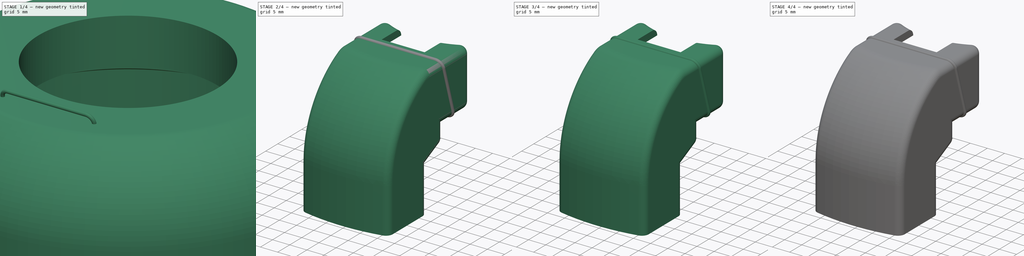
[diagram: build sequence overview — one tinted view per stage of 4, left to right]
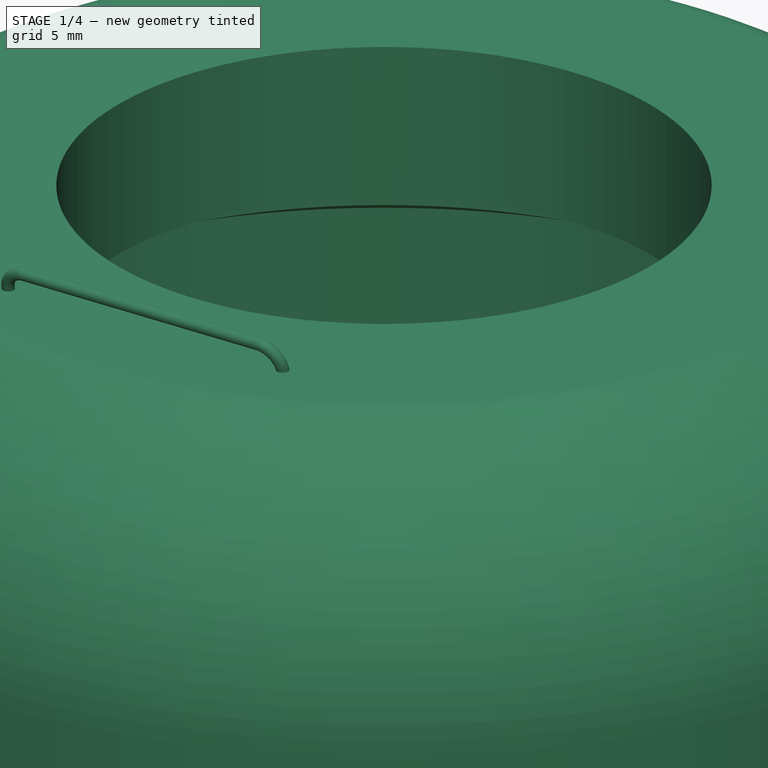
[diagram: stage 1 of 4 — iso view after this stage's code; geometry added in this stage tinted green]
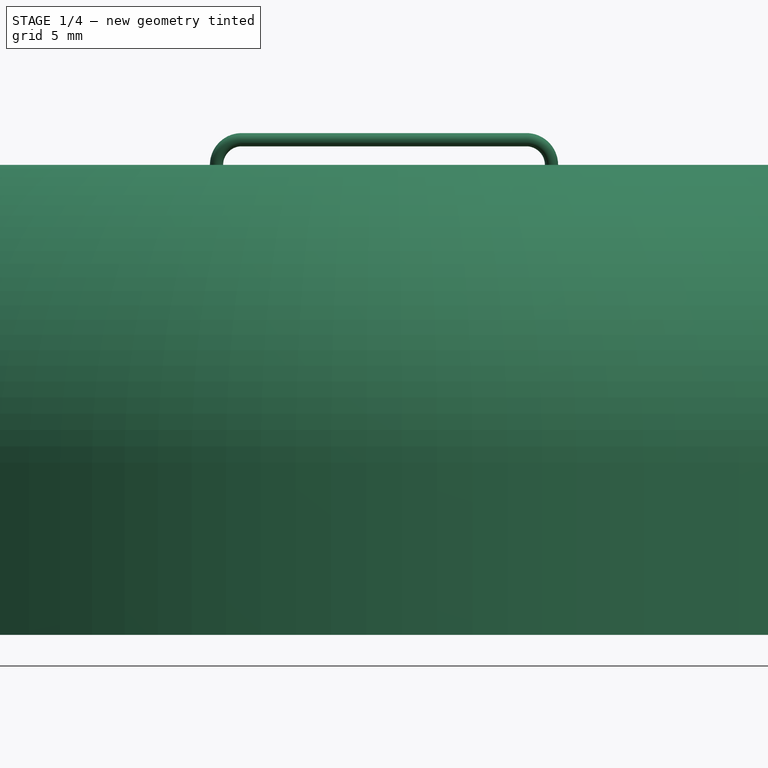
[diagram: stage 1 of 4 — front view after this stage's code; geometry added in this stage tinted green]
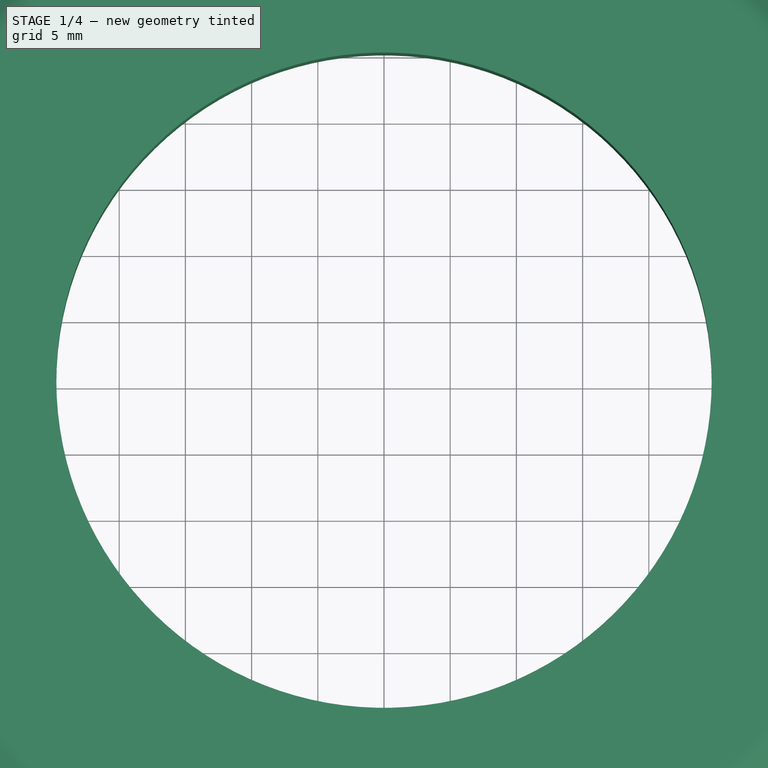
[diagram: stage 1 of 4 — top view after this stage's code; geometry added in this stage tinted green]
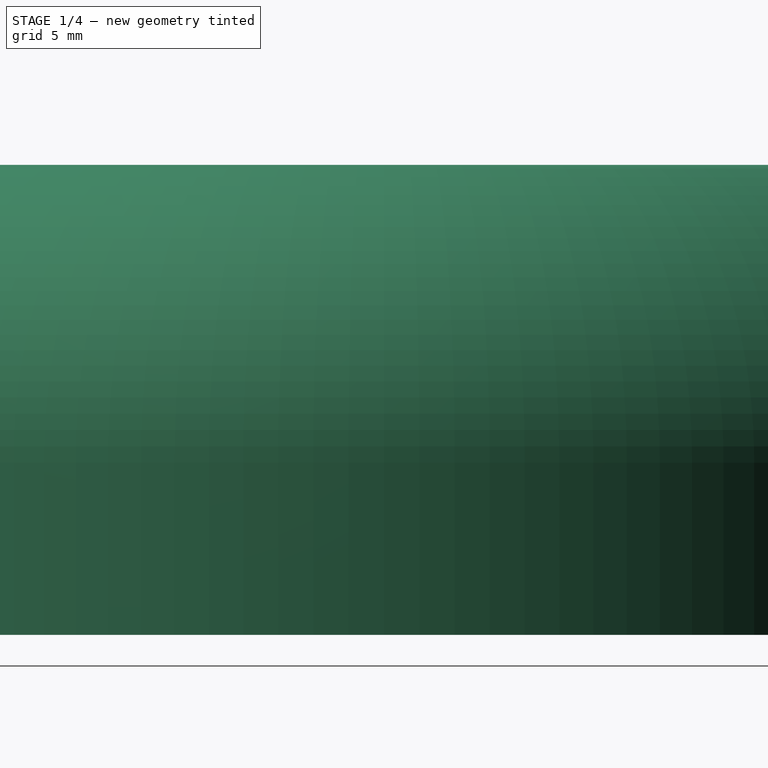
[diagram: stage 1 of 4 — right view after this stage's code; geometry added in this stage tinted green]
FCSTD DOCUMENT  (FreeCAD 1.0R39109 (Git))
Label: pado chimney 5
License: All rights reserved
objects: Sketcher::SketchObject×8, PartDesign::Body×5, PartDesign::FeatureBase×4, Part::FeaturePython×3, PartDesign::Pocket×2, PartDesign::Boolean×2, Part::Extrusion×1, Part::Face×1, App::DocumentObjectGroup×1, Part::Offset2D×1, Part::Sweep×1, App::Part×1, PartDesign::SubShapeBinder×1, PartDesign::Revolution×1, PartDesign::Thickness×1, App::VarSet×1
note: 53 computed .brp shape members not serialized (recipe doc carries the construction recipe); baked Part::Feature solids carry a one-line shape summary decoded from their .brp

FEATURE [Sketcher::SketchObject] Sketch003
  ArcFitTolerance = 1e-06
  AttachmentSupport = -> [XZ_Plane001]
  FullyConstrained = true
  MakeInternals = false
  MapMode = 5
  Placement = pos=(0,0,0) rot=(1,0,0;1.5708rad)
  expr: Constraints[28] = VarSet.Thickness
  sketch-geometry (13):
    g0: LineSegment StartX=-12.75 StartY=35.5 StartZ=0 EndX=-12.75 EndY=23 EndZ=0
    g1: LineSegment StartX=-10.75 StartY=21 StartZ=0 EndX=10.75 EndY=21 EndZ=0
    g2: LineSegment StartX=12.75 StartY=23 StartZ=0 EndX=12.75 EndY=35.5 EndZ=0
    g3: LineSegment StartX=10.75 StartY=37.5 StartZ=0 EndX=-10.75 EndY=37.5 EndZ=0
    g4: GeomPoint [constr] X=0 Y=29.25 Z=0
    g5: ArcOfCircle CenterX=10.75 CenterY=35.5 CenterZ=0 NormalX=0 NormalY=0 NormalZ=1 AngleXU=0 Radius=2 StartAngle=1.4e-15 EndAngle=1.5708
    g6: GeomPoint [constr] X=12.75 Y=37.5 Z=0
    g7: ArcOfCircle CenterX=10.75 CenterY=23 CenterZ=0 NormalX=0 NormalY=0 NormalZ=1 AngleXU=0 Radius=2 StartAngle=4.71239 EndAngle=6.28319
    g8: GeomPoint [constr] X=12.75 Y=21 Z=0
    g9: ArcOfCircle CenterX=-10.75 CenterY=23 CenterZ=0 NormalX=0 NormalY=0 NormalZ=1 AngleXU=0 Radius=2 StartAngle=3.14159 EndAngle=4.71239
    g10: GeomPoint [constr] X=-12.75 Y=21 Z=0
    g11: ArcOfCircle CenterX=-10.75 CenterY=35.5 CenterZ=0 NormalX=0 NormalY=0 NormalZ=1 AngleXU=0 Radius=2 StartAngle=1.5708 EndAngle=3.14159
    g12: GeomPoint [constr] X=-12.75 Y=37.5 Z=0
  constraints (29):
    c: Vertical(g0)
    c: Vertical(g2)
    c: Horizontal(g1)
    c: Horizontal(g3)
    c: Symmetric(g8,g12,g4)
    c: PointOnObject(g4,g-2)
    c: DistanceY(g-1,g10) = 21
    c: DistanceY(g10,g12) = 16.5
    c: Distance(g6,g12) = 25.5
    c: PointOnObject(g6,g3)
    c: PointOnObject(g6,g2)
    c: Tangent(g3,g5) = -1.5708
    c: Tangent(g2,g5) = -1.5708
    c: PointOnObject(g8,g2)
    c: PointOnObject(g8,g1)
    c: Tangent(g2,g7) = -1.5708
    c: Tangent(g1,g7) = -1.5708
    c: PointOnObject(g10,g1)
    c: PointOnObject(g10,g0)
    c: Tangent(g1,g9) = -1.5708
    c: Tangent(g0,g9) = -1.5708
    c: PointOnObject(g12,g3)
    c: PointOnObject(g12,g0)
    c: Tangent(g3,g11) = -1.5708
    c: Tangent(g0,g11) = -1.5708
    c: Equal(g5,g11)
    c: Equal(g11,g9)
    c: Equal(g9,g7)
    c: Radius(g5) = 2
FEATURE [Part::Extrusion] Extrude
  Base = -> Sketch003
  Dir = (0,-1,2e-16)
  DirMode = 2
  FaceMakerClass = Part::FaceMakerBullseye
  FaceMakerMode = 3
  LengthFwd = 50
  LengthRev = 0
  Solid = false
  Symmetric = false
FEATURE [Sketcher::SketchObject] Sketch004
  ArcFitTolerance = 1e-06
  AttachmentSupport = -> [Extrude]
  FullyConstrained = false
  MakeInternals = false
  MapMode = 5
  Placement = pos=(0,8.3e-15,37.5) rot=(1,0,0;3.14159rad)
  sketch-geometry (1):
    g0: LineSegment StartX=-17.692 StartY=32 StartZ=0 EndX=17.692 EndY=32 EndZ=0
  constraints (2):
    c: Symmetric(g0,g0,g-2)
    c: DistanceY(g-1,g0) = 32
FEATURE [Sketcher::SketchObject] Sketch005
  ArcFitTolerance = 1e-06
  AttachmentSupport = -> [Extrude]
  FullyConstrained = true
  MakeInternals = false
  MapMode = 5
  Placement = pos=(0,4.7e-15,21) rot=(0,0,1;0rad)
  sketch-geometry (1):
    g0: GeomPoint X=0 Y=-27 Z=0
  constraints (2):
    c: PointOnObject(g0,g-2)
    c: DistanceY(g0,g-1) = 27
FEATURE [Sketcher::SketchObject] Sketch006
  ArcFitTolerance = 1e-06
  AttachmentSupport = -> [Sketch005,Sketch004]
  FullyConstrained = false
  MakeInternals = false
  MapMode = 13
  Placement = pos=(0,-30.3333,32) rot=(0,0.595816,0.803121;3.14159rad)
  sketch-geometry (5):
    g0: LineSegment StartX=-41.0077 StartY=-30.9425 StartZ=0 EndX=41.0077 EndY=-30.9425 EndZ=0
    g1: LineSegment StartX=41.0077 StartY=-30.9425 StartZ=0 EndX=41.0077 EndY=17.9335 EndZ=0
    g2: LineSegment StartX=41.0077 StartY=17.9335 StartZ=0 EndX=-41.0077 EndY=17.9335 EndZ=0
    g3: LineSegment StartX=-41.0077 StartY=17.9335 StartZ=0 EndX=-41.0077 EndY=-30.9425 EndZ=0
    g4: GeomPoint [constr] X=0 Y=-6.50452 Z=0
  constraints (10):
    c: Coincident(g0,g1)
    c: Coincident(g1,g2)
    c: Coincident(g2,g3)
    c: Coincident(g3,g0)
    c: Horizontal(g0)
    c: Horizontal(g2)
    c: Vertical(g1)
    c: Vertical(g3)
    c: Symmetric(g2,g0,g4)
    c: PointOnObject(g4,g-2)
FEATURE [Part::Face] Face
  FaceMakerClass = Part::FaceMakerBullseye
  Sources = -> [Sketch006]
FEATURE [Part::FeaturePython] Slice  # WARN: FeaturePython — macro-defined, semantics opaque (R4)
  Base = -> Face
  Mode = 1
  Tolerance = 0
  Tools = -> [Extrude]
FEATURE [Part::FeaturePython] Slice_child0  label="Slice.0"  # WARN: FeaturePython — macro-defined, semantics opaque (R4)
  Base = -> Slice
  FilterType = 1
  Invert = false
  OverrideMaxVal = 0
  WindowFrom = 80
  WindowTo = 100
  items = 0
FEATURE [Part::FeaturePython] Slice_child1  label="Slice.1"  # WARN: FeaturePython — macro-defined, semantics opaque (R4)
  Base = -> Slice
  FilterType = 1
  Invert = false
  OverrideMaxVal = 0
  WindowFrom = 80
  WindowTo = 100
  items = 1
FEATURE [App::DocumentObjectGroup] GrExplode_Slice  label="Exploded Slice"
  Group = -> [Slice_child0,Slice_child1]
FEATURE [Part::Offset2D] Offset2D
  Fill = false
  Intersection = false
  Join = 0
  Mode = 1
  SelfIntersection = false
  Source = -> Slice_child1
  Value = -0.1
FEATURE [Sketcher::SketchObject] Sketch007
  ArcFitTolerance = 1e-06
  AttachmentSupport = -> [Offset2D]
  FullyConstrained = true
  MakeInternals = false
  MapMode = 7
  Placement = pos=(-10.75,-27.029,21.0957) rot=(0.57735,-0.57735,-0.57735;2.0944rad)
  expr: Constraints[1] = VarSet.GrooveDiameter
  sketch-geometry (1):
    g0: Circle CenterX=0 CenterY=0 CenterZ=0 NormalX=0 NormalY=0 NormalZ=1 AngleXU=0 Radius=0.5
  constraints (2):
    c: Coincident(g0,g-1)
    c: Diameter(g0) = 1
FEATURE [Part::Sweep] Sweep
  Frenet = true
  Sections = -> [Sketch007]
  Solid = true
  Spine = -> Offset2D [Edge3,Edge4,Edge5,Edge6,Edge7,Edge8,Edge1,Edge2]
  Transition = 1
FEATURE [App::Part] Part  label="Groove Cutter"
  Group = -> [Sketch003,Extrude,Sketch004,Sketch005,Sketch006,Face,Slice_child0,Slice_child1,Slice,GrExplode_Slice,Sweep,Offset2D,Sketch007]
  Origin = -> Origin001
FEATURE [Sketcher::SketchObject] Sketch008
  ArcFitTolerance = 1e-06
  AttachmentSupport = -> [XZ_Plane003]
  FullyConstrained = true
  MakeInternals = false
  MapMode = 5
  Placement = pos=(0,0,0) rot=(1,0,0;1.5708rad)
  expr: Constraints[56] = VarSet.Thickness
  sketch-geometry (20):
    g0: LineSegment [constr] StartX=0 StartY=0 StartZ=0 EndX=41.12 EndY=0 EndZ=0
    g1: LineSegment [constr] StartX=41.12 StartY=0 StartZ=0 EndX=41.12 EndY=20 EndZ=0
    g2: LineSegment [constr] StartX=41.12 StartY=20 StartZ=0 EndX=38.75 EndY=20 EndZ=0
    g3: LineSegment [constr] StartX=38.75 StartY=20 StartZ=0 EndX=38.75 EndY=50 EndZ=0
    g4: LineSegment [constr] StartX=38.75 StartY=50 StartZ=0 EndX=0 EndY=50 EndZ=0
    g5: LineSegment [constr] StartX=0 StartY=50 StartZ=0 EndX=0 EndY=0 EndZ=0
    g6: LineSegment StartX=39.62 StartY=-2 StartZ=0 EndX=39.62 EndY=13 EndZ=0
    g7: LineSegment StartX=39.62 StartY=13 StartZ=0 EndX=33.12 EndY=16.25 EndZ=0
    g8: LineSegment StartX=33.12 StartY=16.25 StartZ=0 EndX=33.12 EndY=21 EndZ=0
    g9: LineSegment StartX=33.12 StartY=21 StartZ=0 EndX=22.75 EndY=21 EndZ=0
    g10: LineSegment StartX=22.75 StartY=21 StartZ=0 EndX=22.75 EndY=37.5 EndZ=0
    g11: LineSegment [constr] StartX=22.75 StartY=37.5 StartZ=0 EndX=55.62 EndY=37.5 EndZ=0
    g12: LineSegment [constr] StartX=55.62 StartY=37.5 StartZ=0 EndX=55.62 EndY=-2 EndZ=0
    g13: LineSegment StartX=55.62 StartY=-2 StartZ=0 EndX=39.62 EndY=-2 EndZ=0
    g14: LineSegment StartX=55.62 StartY=-2 StartZ=0 EndX=55.62 EndY=13 EndZ=0
    g15: LineSegment StartX=22.75 StartY=37.5 StartZ=0 EndX=38.75 EndY=37.5 EndZ=0
    g16: LineSegment [constr] StartX=37.62 StartY=14 StartZ=0 EndX=39.62 EndY=14 EndZ=0
    g17: LineSegment [constr] StartX=39.62 StartY=14 StartZ=0 EndX=39.62 EndY=13 EndZ=0
    g18: ArcOfCircle CenterX=28.6677 CenterY=13 CenterZ=0 NormalX=0 NormalY=0 NormalZ=1 AngleXU=0 Radius=26.9523 StartAngle=5e-16 EndAngle=1.09361
    g19: ArcOfCircle CenterX=38.75 CenterY=32.5 CenterZ=0 NormalX=0 NormalY=0 NormalZ=1 AngleXU=0 Radius=5 StartAngle=1.09361 EndAngle=1.5708
  constraints (57):
    c: Coincident(g-1,g0)
    c: PointOnObject(g0,g-1)
    c: Coincident(g0,g1)
    c: Vertical(g1)
    c: Coincident(g1,g2)
    c: Coincident(g2,g3)
    c: Vertical(g3)
    c: Coincident(g3,g4)
    c: PointOnObject(g4,g-2)
    c: Horizontal(g4)
    c: Coincident(g4,g5)
    c: Coincident(g5,g0)
    c: Horizontal(g2)
    c: Distance(g0,g0) = 41.12
    c: DistanceY(g1,g1) = 20
    c: DistanceY(g3,g3) = 30
    c: Vertical(g6)
    c: Coincident(g7,g6)
    c: Coincident(g8,g7)
    c: Vertical(g8)
    c: Coincident(g9,g8)
    c: Horizontal(g9)
    c: Coincident(g10,g9)
    c: Vertical(g10)
    c: Coincident(g11,g10)
    c: Horizontal(g11)
    c: Coincident(g12,g11)
    c: Vertical(g12)
    c: Coincident(g13,g12)
    c: Coincident(g13,g6)
    c: Distance(g7,g1) = 8
    c: Distance(g9,g3) = 16
    c: Distance(g13,g13) = 16
    c: Coincident(g14,g12)
    c: PointOnObject(g14,g12)
    c: Coincident(g10,g15)
    c: PointOnObject(g15,g11)
    c: PointOnObject(g15,g3)
    c: Horizontal(g6,g14)
    c: DistanceY(g10,g10) = 16.5
    c: DistanceX(g4,g4) = 38.75
    c: DistanceY(g-1,g9) = 21
    c: Horizontal(g16)
    c: Coincident(g16,g17)
    c: Coincident(g17,g6)
    c: Vertical(g17)
    c: PointOnObject(g16,g7)
    c: Distance(g17,g17) = 1
    c: DistanceX(g16,g16) = 2
    c: Tangent(g18,g14) = -1.5708
    c: Tangent(g19,g18) = -1.5708
    c: Tangent(g19,g15) = 1.5708
    c: Radius(g19) = 5
    c: Distance(g6,g0) = 13
    c: Horizontal(g13)
    c: Distance(g6,g1) = 1.5
    c: DistanceY(g6,g-1) = 2
FEATURE [Sketcher::SketchObject] Sketch009
  ArcFitTolerance = 1e-06
  AttachmentSupport = -> [XY_Plane003]
  FullyConstrained = true
  MakeInternals = false
  MapMode = 5
  expr: Constraints[19] = 25.5 mm - 2 * VarSet.Thickness
  sketch-geometry (10):
    g0: LineSegment StartX=-100 StartY=-100 StartZ=0 EndX=-10.75 EndY=-100 EndZ=0
    g1: LineSegment StartX=100 StartY=-100 StartZ=0 EndX=100 EndY=100 EndZ=0
    g2: LineSegment StartX=100 StartY=100 StartZ=0 EndX=-100 EndY=100 EndZ=0
    g3: LineSegment StartX=-100 StartY=100 StartZ=0 EndX=-100 EndY=-100 EndZ=0
    g4: GeomPoint [constr] X=0 Y=0 Z=0
    g5: LineSegment StartX=10.75 StartY=0 StartZ=0 EndX=-10.75 EndY=0 EndZ=0
    g6: LineSegment StartX=-10.75 StartY=0 StartZ=0 EndX=-10.75 EndY=-100 EndZ=0
    g7: LineSegment StartX=10.75 StartY=-100 StartZ=0 EndX=10.75 EndY=0 EndZ=0
    g8: GeomPoint [constr] X=0 Y=-50 Z=0
    g9: LineSegment StartX=10.75 StartY=-100 StartZ=0 EndX=100 EndY=-100 EndZ=0
  constraints (25):
    c: Coincident(g9,g1)
    c: Coincident(g1,g2)
    c: Coincident(g2,g3)
    c: Coincident(g3,g0)
    c: Horizontal(g0)
    c: Horizontal(g2)
    c: Vertical(g1)
    c: Vertical(g3)
    c: Symmetric(g2,g0,g4)
    c: Coincident(g4,g-1)
    c: Equal(g2,g1)
    c: DistanceY(g3,g3) = 200
    c: Coincident(g5,g6)
    c: Coincident(g7,g5)
    c: Horizontal(g5)
    c: Vertical(g6)
    c: Vertical(g7)
    c: Symmetric(g6,g5,g8)
    c: PointOnObject(g8,g-2)
    c: DistanceX(g6,g7) = 21.5
    c: PointOnObject(g4,g5)
    c: Coincident(g0,g6)
    c: Coincident(g7,g9)
    c: Horizontal(g9)
    c: Horizontal(g0,g7)
FEATURE [PartDesign::SubShapeBinder] Binder
  BindCopyOnChange = 0
  BindMode = 0
  ClaimChildren = false
  Context = -> Body001 [Binder.]
  Fuse = false
  MakeFace = true
  Offset = -2
  OffsetFill = false
  OffsetIntersection = false
  OffsetJoinType = 2
  OffsetOpenResult = false
  PartialLoad = false
  Relative = true
  Support = -> [Sketch008]
  _Version = 2
  expr: Offset = -VarSet.Thickness
FEATURE [PartDesign::Revolution] Revolution001
  Angle = 360
  Angle2 = 60
  Axis = (1e-16,1e-16,1)
  Base = (0,0,0)
  Profile = -> Binder
  ReferenceAxis = -> Z_Axis003
  Reversed = true
  Suppressed = false
  Type = 0
FEATURE [PartDesign::FeatureBase] Clone003
  BaseFeature = -> Sweep
  Suppressed = false
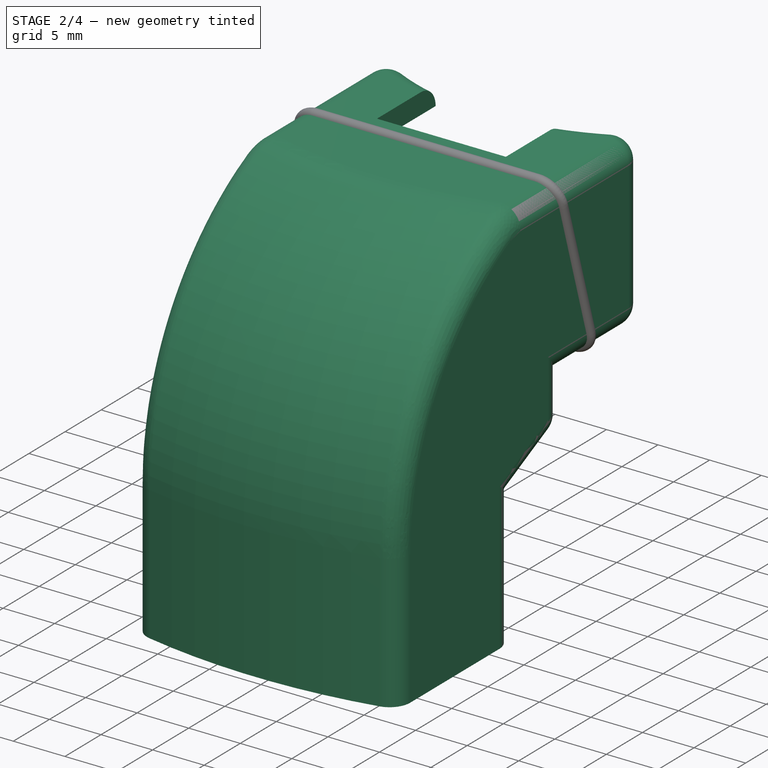
[diagram: stage 2 of 4 — iso view after this stage's code; geometry added in this stage tinted green]
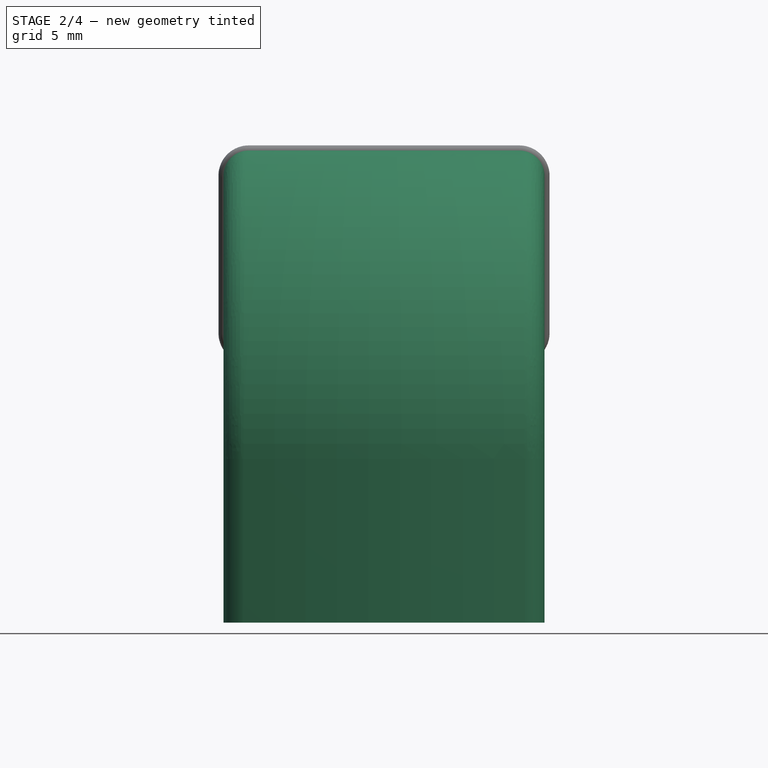
[diagram: stage 2 of 4 — front view after this stage's code; geometry added in this stage tinted green]
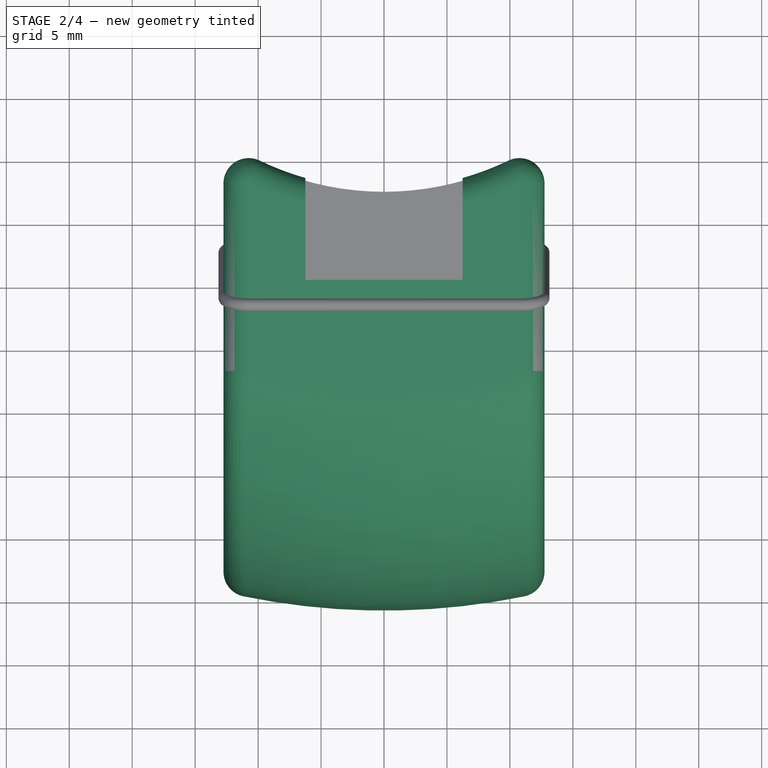
[diagram: stage 2 of 4 — top view after this stage's code; geometry added in this stage tinted green]
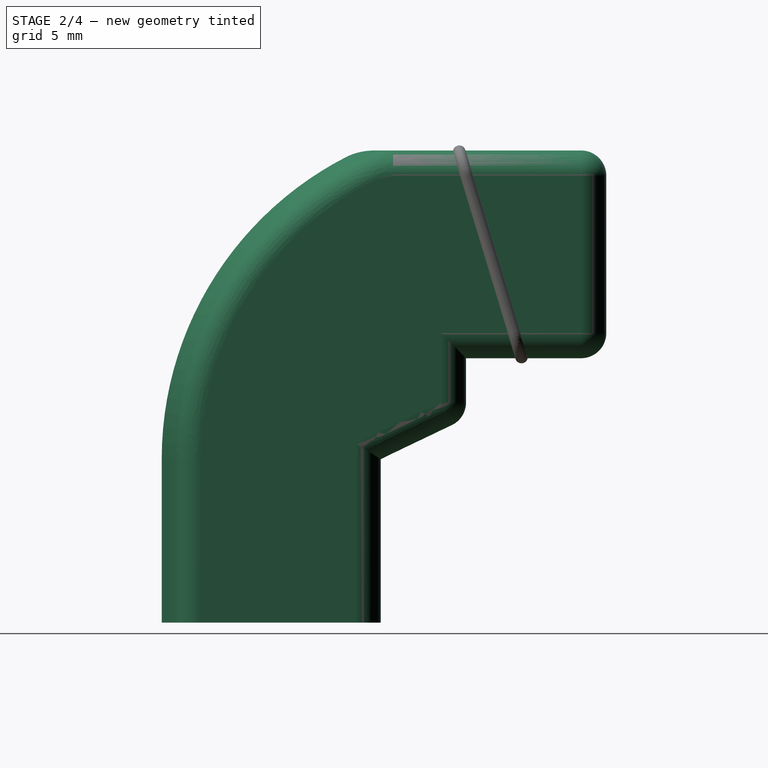
[diagram: stage 2 of 4 — right view after this stage's code; geometry added in this stage tinted green]
FEATURE [PartDesign::Pocket] Pocket002
  BaseFeature = -> Revolution001
  Direction = (0,0,-1)
  Length = 5
  Length2 = 5
  Midplane = true
  Profile = -> Sketch009
  ReferenceAxis = -> Sketch009 [N_Axis]
  Suppressed = false
  Type = 1
FEATURE [PartDesign::Thickness] Thickness001
  Base = -> Pocket002 [Face5]
  BaseFeature = -> Pocket002
  Intersection = false
  Join = 0
  Mode = 0
  SupportTransform = false
  Suppressed = false
  Value = 2
  expr: Value = VarSet.Thickness
FEATURE [Sketcher::SketchObject] Sketch010
  ArcFitTolerance = 1e-06
  AttachmentSupport = -> [XZ_Plane003]
  ExternalGeometry = -> [Sketch008,Sketch009]
  FullyConstrained = true
  MakeInternals = false
  MapMode = 5
  Placement = pos=(0,0,0) rot=(1,0,0;1.5708rad)
  expr: Constraints[12] = VarSet.Thickness
  sketch-geometry (13):
    g0: LineSegment StartX=-10.75 StartY=23 StartZ=0 EndX=10.75 EndY=23 EndZ=0
    g1: LineSegment StartX=10.75 StartY=23 StartZ=0 EndX=10.75 EndY=35.5 EndZ=0
    g2: LineSegment [constr] StartX=10.75 StartY=35.5 StartZ=0 EndX=-10.75 EndY=35.5 EndZ=0
    g3: LineSegment StartX=-10.75 StartY=35.5 StartZ=0 EndX=-10.75 EndY=23 EndZ=0
    g4: GeomPoint [constr] X=0 Y=29.25 Z=0
    g5: GeomPoint X=22.75 Y=29.25 Z=0
    g6: LineSegment [constr] StartX=-6.25 StartY=35.5 StartZ=0 EndX=6.25 EndY=35.5 EndZ=0
    g7: LineSegment StartX=6.25 StartY=35.5 StartZ=0 EndX=6.25 EndY=37.5 EndZ=0
    g8: LineSegment StartX=6.25 StartY=37.5 StartZ=0 EndX=-6.25 EndY=37.5 EndZ=0
    g9: LineSegment StartX=-6.25 StartY=37.5 StartZ=0 EndX=-6.25 EndY=35.5 EndZ=0
    g10: GeomPoint [constr] X=0 Y=36.5 Z=0
    g11: LineSegment StartX=-10.75 StartY=35.5 StartZ=0 EndX=-6.25 EndY=35.5 EndZ=0
    g12: LineSegment StartX=6.25 StartY=35.5 StartZ=0 EndX=10.75 EndY=35.5 EndZ=0
  constraints (31):
    c: Coincident(g0,g1)
    c: Coincident(g1,g2)
    c: Coincident(g2,g3)
    c: Coincident(g3,g0)
    c: Horizontal(g0)
    c: Horizontal(g2)
    c: Vertical(g1)
    c: Vertical(g3)
    c: Symmetric(g2,g0,g4)
    c: PointOnObject(g4,g-2)
    c: Symmetric(g-3,g-3,g5)
    c: Horizontal(g4,g5)
    c: DistanceY(g1,g-3) = 2
    c: Vertical(g0,g-4)
    c: Coincident(g6,g7)
    c: Coincident(g7,g8)
    c: Coincident(g8,g9)
    c: Coincident(g9,g6)
    c: Horizontal(g6)
    c: Horizontal(g8)
    c: Vertical(g7)
    c: Vertical(g9)
    c: Symmetric(g8,g6,g10)
    c: PointOnObject(g10,g-2)
    c: PointOnObject(g6,g2)
    c: Horizontal(g7,g-3)
    c: DistanceX(g8,g8) = 12.5
    c: Coincident(g11,g2)
    c: Coincident(g11,g6)
    c: Coincident(g12,g6)
    c: Coincident(g12,g1)
FEATURE [PartDesign::Pocket] Pocket003
  BaseFeature = -> Thickness001
  Direction = (0,1,-2e-16)
  Length = 30
  Length2 = 5
  Profile = -> Sketch010
  ReferenceAxis = -> Sketch010 [N_Axis]
  Refine = true
  Reversed = true
  Suppressed = false
  Type = 0
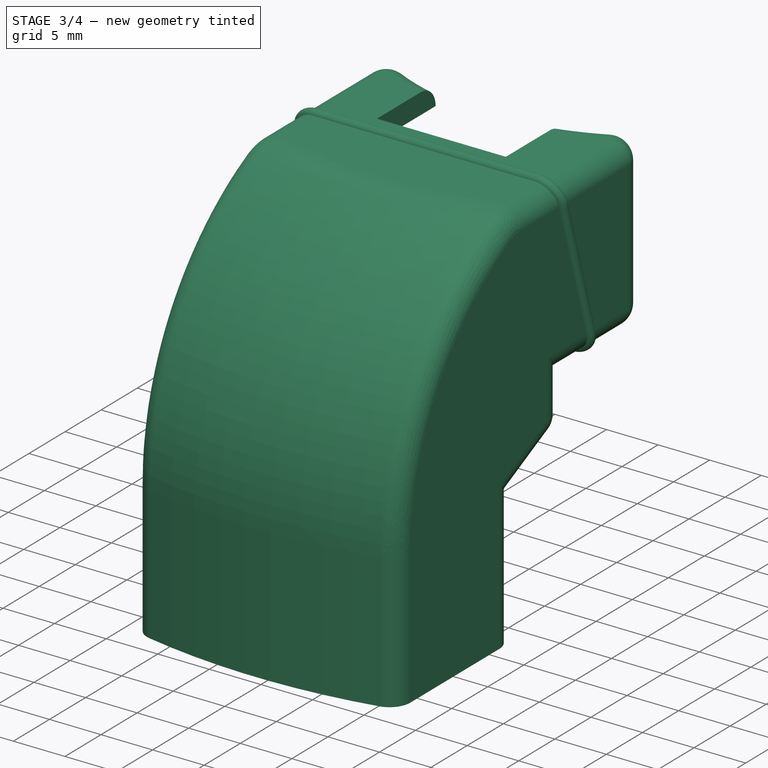
[diagram: stage 3 of 4 — iso view after this stage's code; geometry added in this stage tinted green]
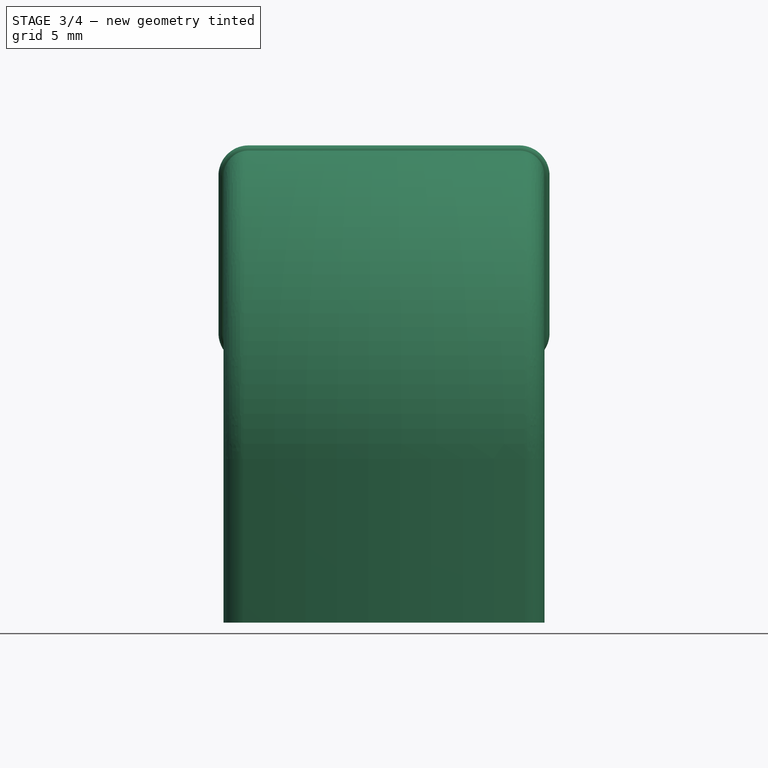
[diagram: stage 3 of 4 — front view after this stage's code; geometry added in this stage tinted green]
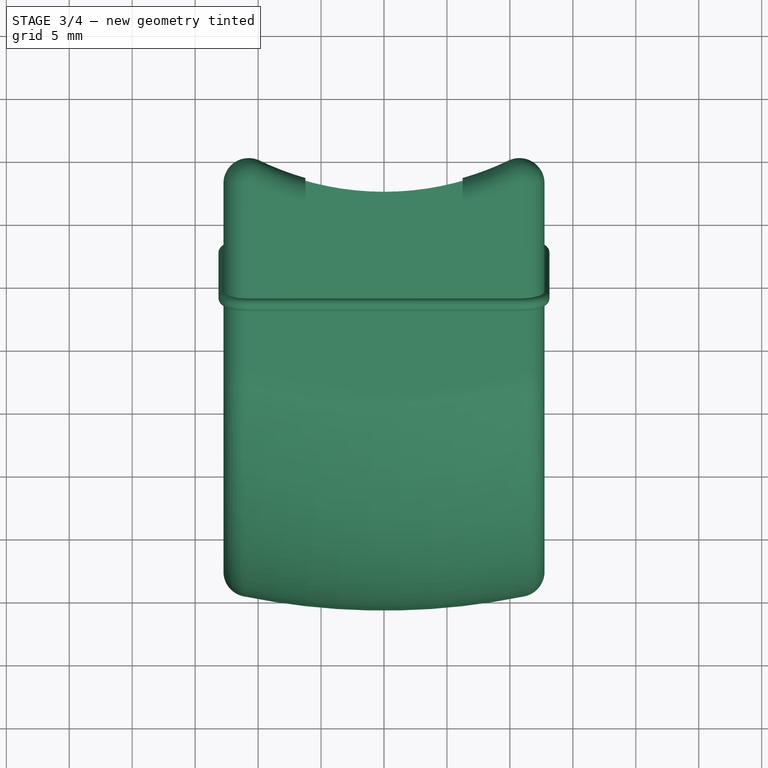
[diagram: stage 3 of 4 — top view after this stage's code; geometry added in this stage tinted green]
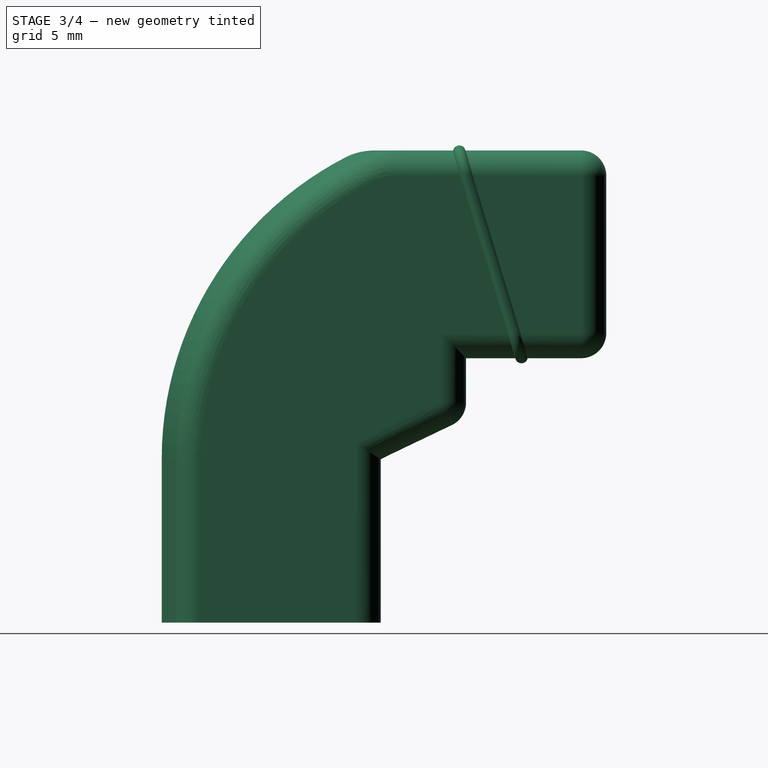
[diagram: stage 3 of 4 — right view after this stage's code; geometry added in this stage tinted green]
FEATURE [PartDesign::Body] Body002  label="Chimney Groove"
  AllowCompound = true
  Group = -> [Clone001,Boolean]
  Origin = -> Origin004
  Tip = -> Boolean
FEATURE [PartDesign::FeatureBase] Clone002
  BaseFeature = -> Body001
  Suppressed = false
FEATURE [PartDesign::Body] Body004
  AllowCompound = true
  Group = -> [Clone003]
  Origin = -> Origin006
  Tip = -> Clone003
FEATURE [PartDesign::Boolean] Boolean001
  BaseFeature = -> Clone002
  Group = -> [Body004]
  Suppressed = false
  Type = 0
  UsePlacement = true
FEATURE [PartDesign::Body] Body003  label="Chimney Ridge"
  AllowCompound = true
  Group = -> [Clone002,Boolean001]
  Origin = -> Origin005
  Tip = -> Boolean001
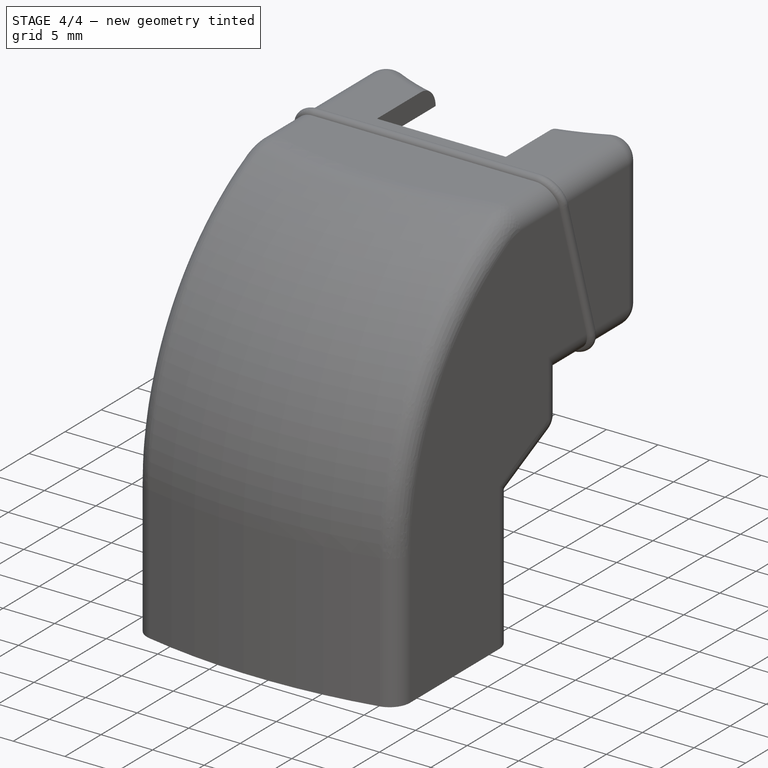
[diagram: stage 4 of 4 — iso view after this stage's code; geometry added in this stage tinted green]
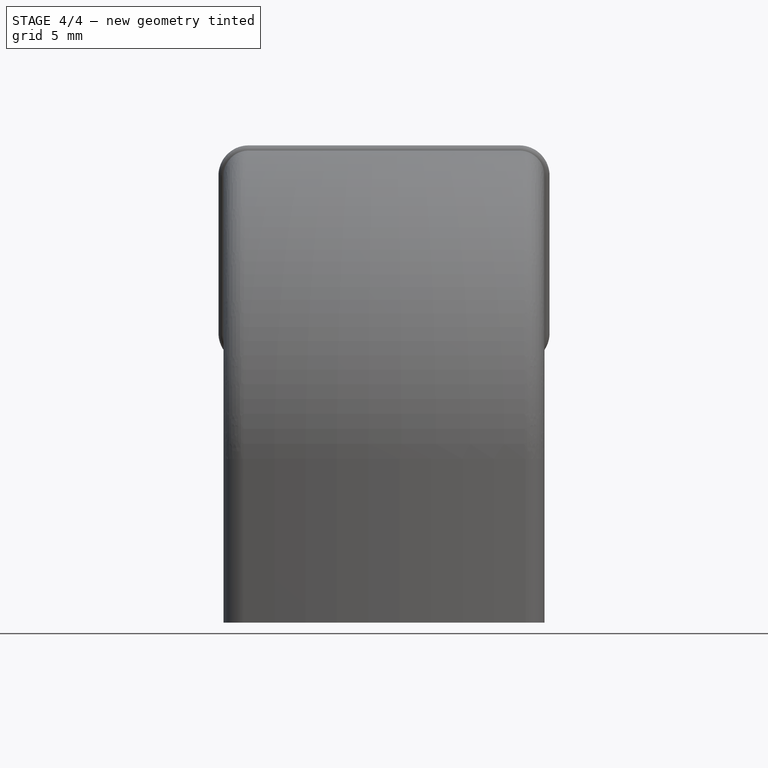
[diagram: stage 4 of 4 — front view after this stage's code; geometry added in this stage tinted green]
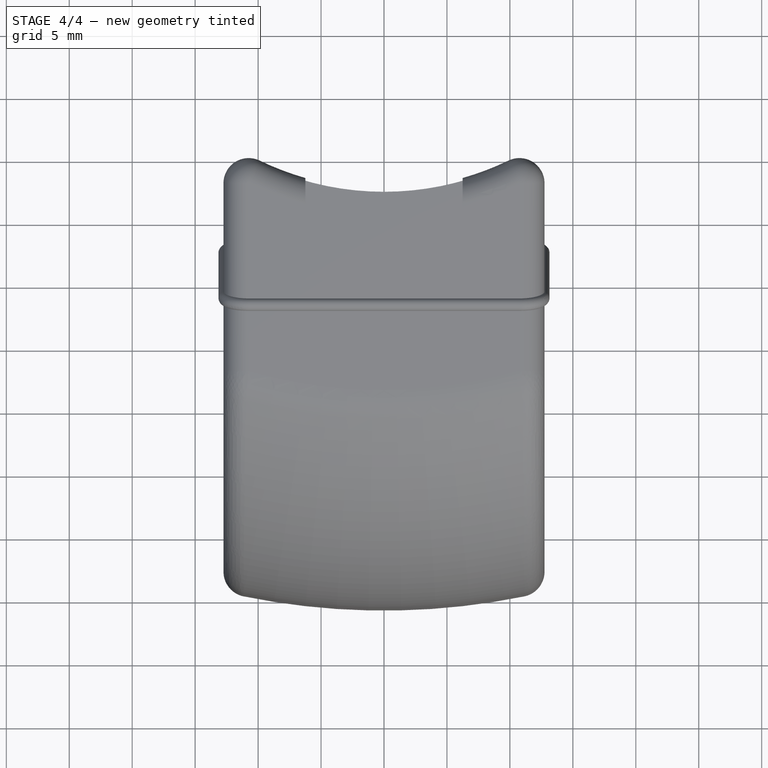
[diagram: stage 4 of 4 — top view after this stage's code; geometry added in this stage tinted green]
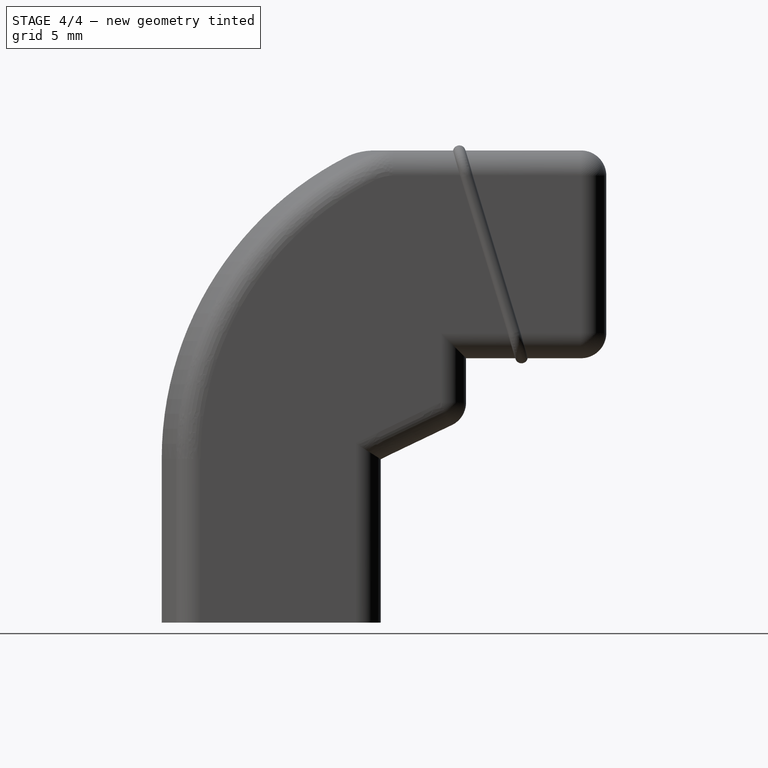
[diagram: stage 4 of 4 — right view after this stage's code; geometry added in this stage tinted green]
FEATURE [PartDesign::Body] Body001  label="Body002"
  AllowCompound = true
  Group = -> [Sketch008,Sketch009,Binder,Revolution001,Pocket002,Thickness001,Sketch010,Pocket003]
  Origin = -> Origin003
  Tip = -> Pocket003
FEATURE [App::VarSet] VarSet
  GrooveDiameter = 1
  Thickness = 2
FEATURE [PartDesign::FeatureBase] Clone
  BaseFeature = -> Sweep
  Suppressed = false
FEATURE [PartDesign::Body] Body
  AllowCompound = true
  Group = -> [Clone]
  Origin = -> Origin
  Tip = -> Clone
FEATURE [PartDesign::FeatureBase] Clone001
  BaseFeature = -> Body001
  Suppressed = false
FEATURE [PartDesign::Boolean] Boolean
  BaseFeature = -> Clone001
  Group = -> [Body]
  Suppressed = false
  Type = 1
  UsePlacement = true
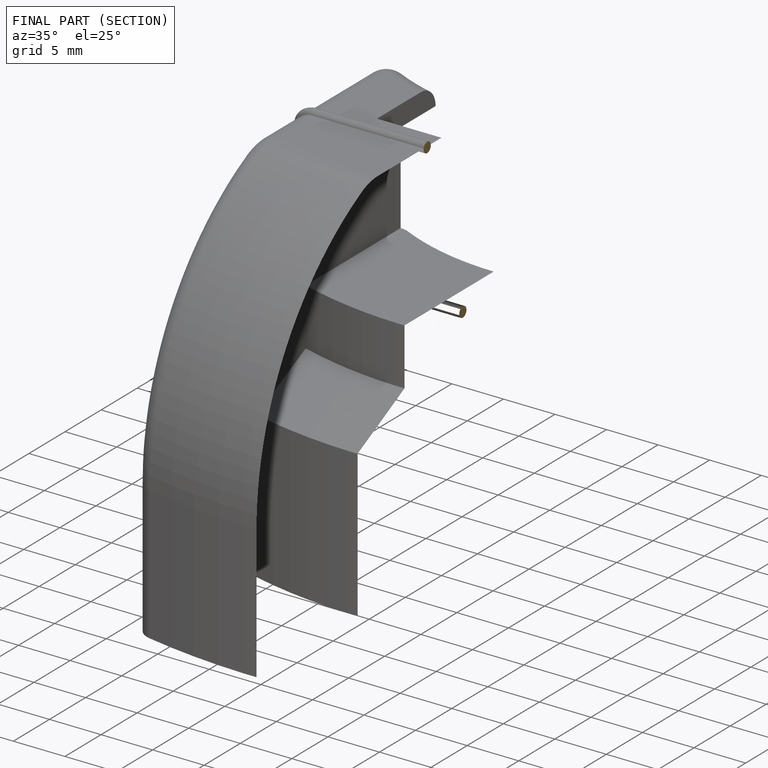
[diagram: finished part — half-section view (interior)]
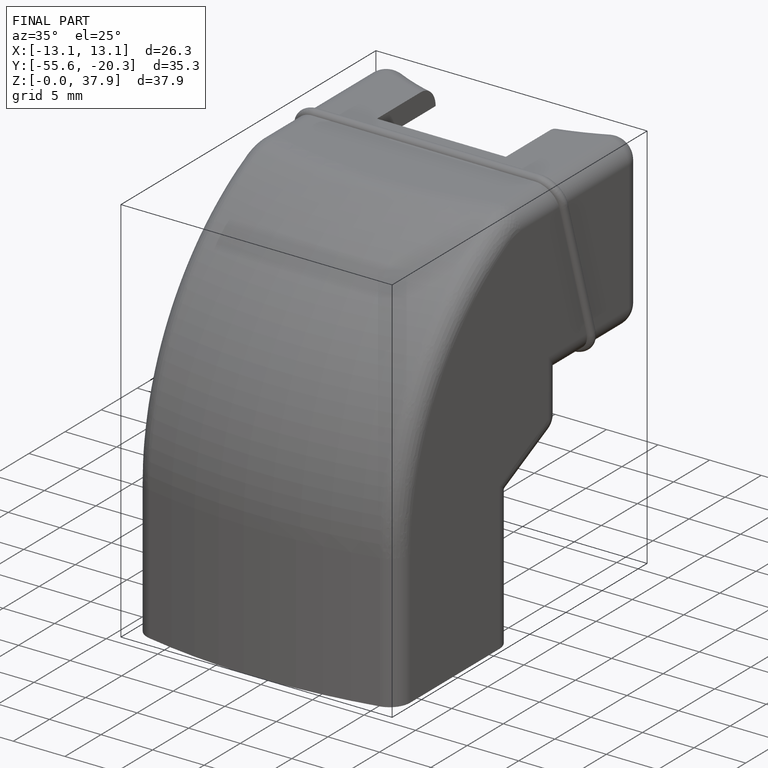
[diagram: finished part — iso view with bounding-box wireframe]
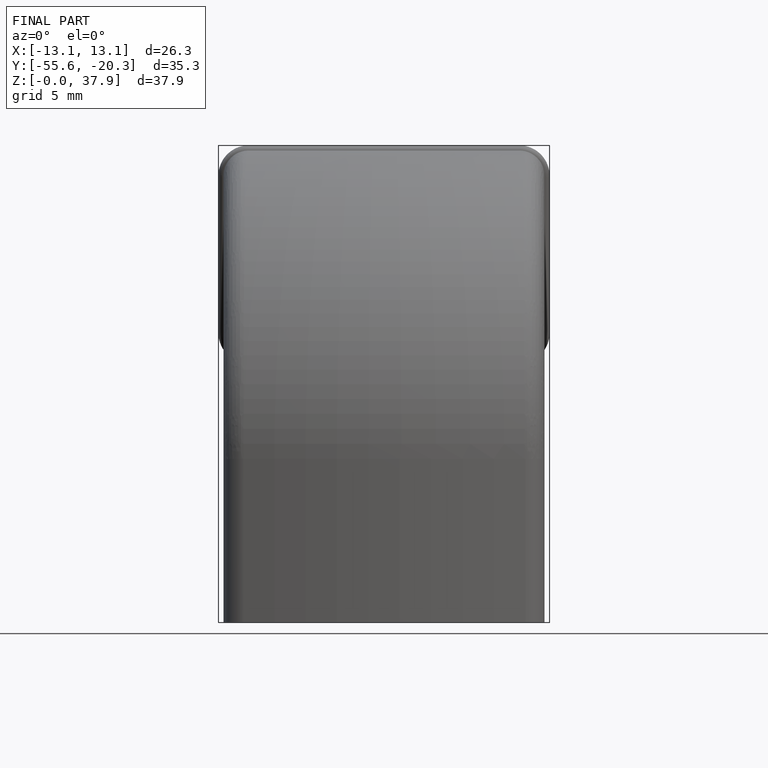
[diagram: finished part — front view with bounding-box wireframe]
